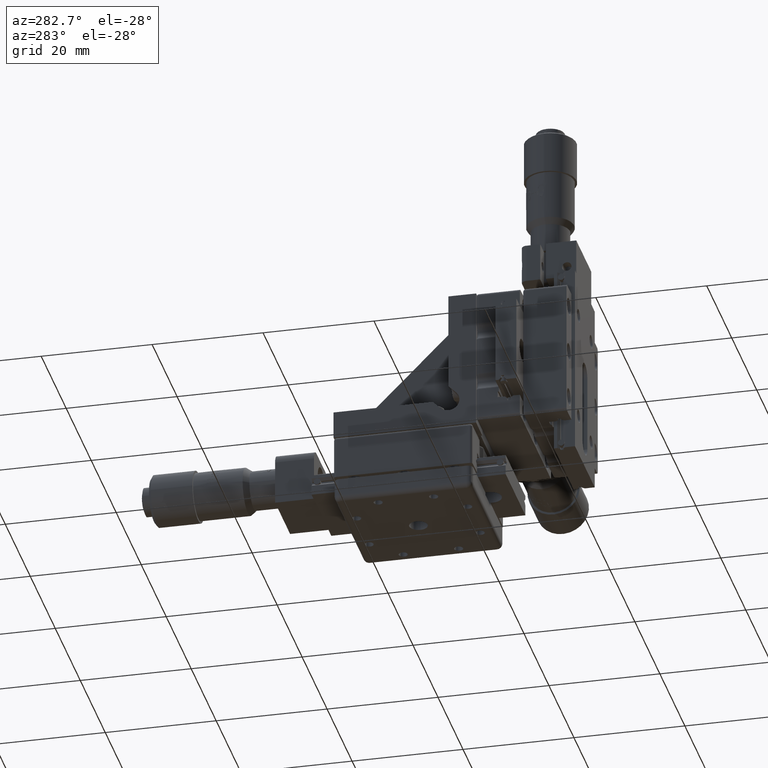
[diagram: clean part render]
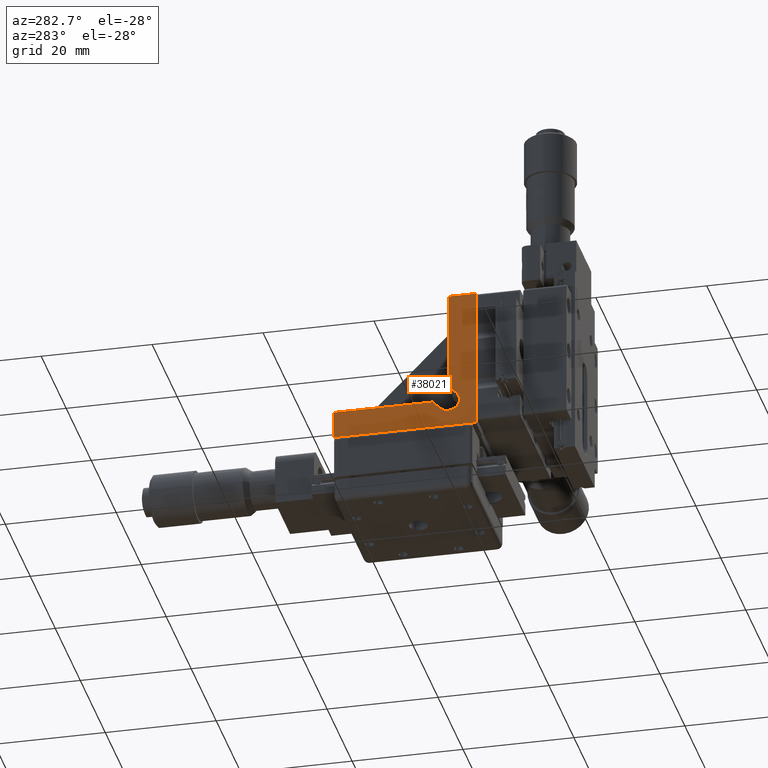
[diagram: same view with one face highlighted and labeled with its STEP entity id]
A machine part, auxiliary view. The second image highlights one B-rep face of the part: STEP entity #38021.
In plain terms, the highlighted planar face has unit normal (1, 0, 0).
Its self-contained STEP definition (entity closure, byte-faithful):
#849 = LINE ( 'NONE', #55767, #90961 ) ;
#2713 = CARTESIAN_POINT ( 'NONE',  ( -12.49999999999913700, 21.80000000000005400, 12.49999999999913300 ) ) ;
#4289 = CARTESIAN_POINT ( 'NONE',  ( -12.49999999999913700, 21.80000000000006100, -5.371572875254661200 ) ) ;
#4355 = VERTEX_POINT ( 'NONE', #5978 ) ;
#5552 = EDGE_CURVE ( 'NONE', #71999, #45419, #88035, .T. ) ;
#5978 = CARTESIAN_POINT ( 'NONE',  ( -12.49999999999913700, 42.50000000000006400, -8.200000000000867900 ) ) ;
#7112 = VERTEX_POINT ( 'NONE', #65340 ) ;
#8602 = CARTESIAN_POINT ( 'NONE',  ( -12.49999999999913700, 21.80000000000006100, -8.200000000000871500 ) ) ;
#10483 = EDGE_CURVE ( 'NONE', #72940, #7112, #45785, .T. ) ;
#11023 = DIRECTION ( 'NONE',  ( 0.0000000000000000000, 0.0000000000000000000, -1.000000000000000000 ) ) ;
#11623 = CARTESIAN_POINT ( 'NONE',  ( -12.49999999999913700, 16.80000000000006100, 12.49999999999913800 ) ) ;
#12282 = DIRECTION ( 'NONE',  ( 0.0000000000000000000, 1.000000000000000000, 9.706607740042965200E-017 ) ) ;
#14488 = EDGE_CURVE ( 'NONE', #45419, #4355, #849, .T. ) ;
#15261 = ORIENTED_EDGE ( 'NONE', *, *, #102979, .F. ) ;
#19395 = CARTESIAN_POINT ( 'NONE',  ( -12.49999999999913700, 16.80000000000006100, 12.49999999999913800 ) ) ;
#19978 = DIRECTION ( 'NONE',  ( 0.0000000000000000000, 0.0000000000000000000, -1.000000000000000000 ) ) ;
#20200 = CARTESIAN_POINT ( 'NONE',  ( -12.49999999999913700, 23.21421356237316400, -9.614213562373960200 ) ) ;
#23270 = EDGE_CURVE ( 'NONE', #44429, #72940, #84015, .T. ) ;
#23322 = CARTESIAN_POINT ( 'NONE',  ( -12.49999999999913700, 42.50000000000006400, 12.49999999999913500 ) ) ;
#24246 = PLANE ( 'NONE',  #104694 ) ;
#26595 = VECTOR ( 'NONE', #90555, 1000.000000000000000 ) ;
#29072 = ORIENTED_EDGE ( 'NONE', *, *, #69873, .F. ) ;
#29890 = VECTOR ( 'NONE', #11023, 1000.000000000000000 ) ;
#32073 = VERTEX_POINT ( 'NONE', #11623 ) ;
#33071 = CARTESIAN_POINT ( 'NONE',  ( -12.49999999999913700, 16.80000000000006100, -0.3500000000008652300 ) ) ;
#33282 = DIRECTION ( 'NONE',  ( 0.0000000000000000000, -1.000000000000000000, 1.349979358736815000E-016 ) ) ;
#36893 = CARTESIAN_POINT ( 'NONE',  ( -12.49999999999913700, 21.80000000000006100, -5.371572875254661200 ) ) ;
#37181 = ORIENTED_EDGE ( 'NONE', *, *, #14488, .T. ) ;
#38021 = ADVANCED_FACE ( 'NONE', ( #39331 ), #24246, .F. ) ;
#38041 = LINE ( 'NONE', #49444, #70697 ) ;
#39331 = FACE_OUTER_BOUND ( 'NONE', #100798, .T. ) ;
#44429 = VERTEX_POINT ( 'NONE', #2713 ) ;
#45419 = VERTEX_POINT ( 'NONE', #107502 ) ;
#45425 = CARTESIAN_POINT ( 'NONE',  ( -12.49999999999913700, 42.50000000000006400, 12.49999999999913500 ) ) ;
#45785 = LINE ( 'NONE', #36893, #105784 ) ;
#48370 = ORIENTED_EDGE ( 'NONE', *, *, #23270, .T. ) ;
#49444 = CARTESIAN_POINT ( 'NONE',  ( -12.49999999999913700, 42.50000000000006400, -13.20000000000086600 ) ) ;
#51825 = LINE ( 'NONE', #19395, #29890 ) ;
#52000 = CARTESIAN_POINT ( 'NONE',  ( -12.49999999999913700, 21.80000000000006100, -5.371572875254661200 ) ) ;
#53543 = ORIENTED_EDGE ( 'NONE', *, *, #10483, .T. ) ;
#53622 = DIRECTION ( 'NONE',  ( 1.000000000000000000, -0.0000000000000000000, -0.0000000000000000000 ) ) ;
#55767 = CARTESIAN_POINT ( 'NONE',  ( -12.49999999999913700, 42.50000000000006400, -8.200000000000867900 ) ) ;
#57216 = EDGE_CURVE ( 'NONE', #105085, #4355, #84874, .T. ) ;
#59334 = DIRECTION ( 'NONE',  ( 1.000000000000000000, 0.0000000000000000000, 0.0000000000000000000 ) ) ;
#64170 = CARTESIAN_POINT ( 'NONE',  ( -12.49999999999913700, 24.62842712474623500, -8.200000000000869700 ) ) ;
#65340 = CARTESIAN_POINT ( 'NONE',  ( -12.49999999999913700, 20.38578643762695500, -6.785786437627782800 ) ) ;
#68118 = ORIENTED_EDGE ( 'NONE', *, *, #57216, .F. ) ;
#69873 = EDGE_CURVE ( 'NONE', #72768, #105085, #38041, .T. ) ;
#70697 = VECTOR ( 'NONE', #102003, 1000.000000000000000 ) ;
#71729 = VECTOR ( 'NONE', #105650, 1000.000000000000000 ) ;
#71999 = VERTEX_POINT ( 'NONE', #20200 ) ;
#72005 = DIRECTION ( 'NONE',  ( -0.0000000000000000000, -0.0000000000000000000, 1.000000000000000000 ) ) ;
#72768 = VERTEX_POINT ( 'NONE', #113037 ) ;
#72940 = VERTEX_POINT ( 'NONE', #4289 ) ;
#72960 = ORIENTED_EDGE ( 'NONE', *, *, #5552, .T. ) ;
#73793 = CARTESIAN_POINT ( 'NONE',  ( -12.49999999999913700, 42.50000000000006400, -13.20000000000086600 ) ) ;
#79380 = VECTOR ( 'NONE', #72005, 1000.000000000000000 ) ;
#80294 = DIRECTION ( 'NONE',  ( -0.0000000000000000000, -0.7071067811865434600, -0.7071067811865516800 ) ) ;
#84015 = LINE ( 'NONE', #52000, #71729 ) ;
#84214 = LINE ( 'NONE', #23322, #101928 ) ;
#84874 = LINE ( 'NONE', #45425, #79380 ) ;
#87550 = ORIENTED_EDGE ( 'NONE', *, *, #93615, .F. ) ;
#88035 = LINE ( 'NONE', #64170, #26595 ) ;
#90555 = DIRECTION ( 'NONE',  ( 0.0000000000000000000, 0.7071067811865439100, 0.7071067811865512400 ) ) ;
#90961 = VECTOR ( 'NONE', #12282, 1000.000000000000000 ) ;
#92982 = CIRCLE ( 'NONE', #107926, 2.000000000000000000 ) ;
#93615 = EDGE_CURVE ( 'NONE', #44429, #32073, #84214, .T. ) ;
#100798 = EDGE_LOOP ( 'NONE', ( #37181, #68118, #29072, #15261, #87550, #48370, #53543, #111664, #72960 ) ) ;
#101928 = VECTOR ( 'NONE', #33282, 1000.000000000000000 ) ;
#102003 = DIRECTION ( 'NONE',  ( -0.0000000000000000000, 1.000000000000000000, 1.349979358736815000E-016 ) ) ;
#102979 = EDGE_CURVE ( 'NONE', #32073, #72768, #51825, .T. ) ;
#104694 = AXIS2_PLACEMENT_3D ( 'NONE', #33071, #59334, #104722 ) ;
#104722 = DIRECTION ( 'NONE',  ( 0.0000000000000000000, 0.0000000000000000000, -1.000000000000000000 ) ) ;
#105085 = VERTEX_POINT ( 'NONE', #73793 ) ;
#105650 = DIRECTION ( 'NONE',  ( 0.0000000000000000000, 2.911982322012894900E-016, -1.000000000000000000 ) ) ;
#105784 = VECTOR ( 'NONE', #80294, 1000.000000000000000 ) ;
#107502 = CARTESIAN_POINT ( 'NONE',  ( -12.49999999999913700, 24.62842712474623500, -8.200000000000871500 ) ) ;
#107926 = AXIS2_PLACEMENT_3D ( 'NONE', #8602, #53622, #19978 ) ;
#111664 = ORIENTED_EDGE ( 'NONE', *, *, #112152, .T. ) ;
#112152 = EDGE_CURVE ( 'NONE', #7112, #71999, #92982, .T. ) ;
#113037 = CARTESIAN_POINT ( 'NONE',  ( -12.49999999999913700, 16.80000000000006100, -13.20000000000087000 ) ) ;